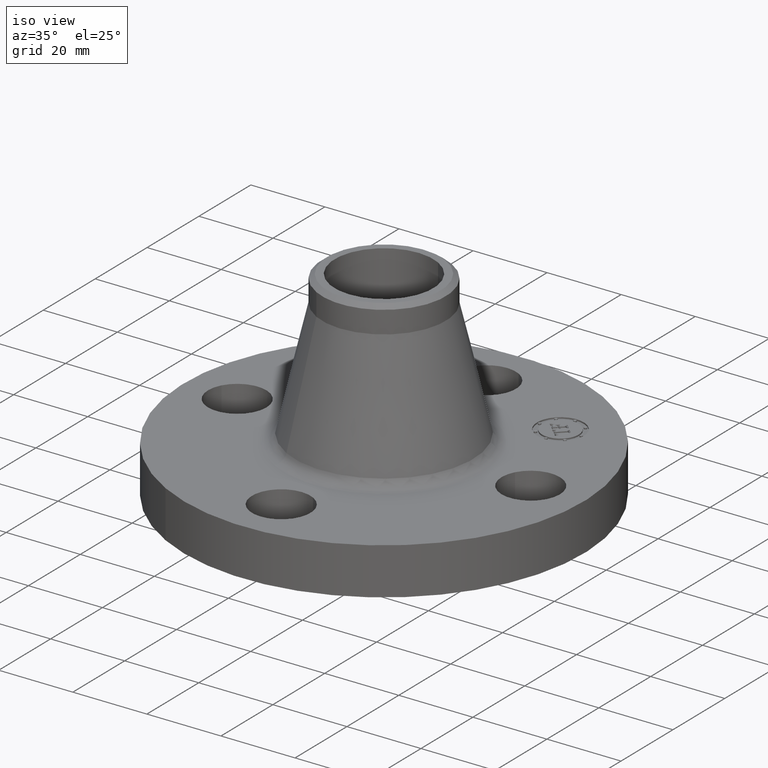
[diagram: clean part render]
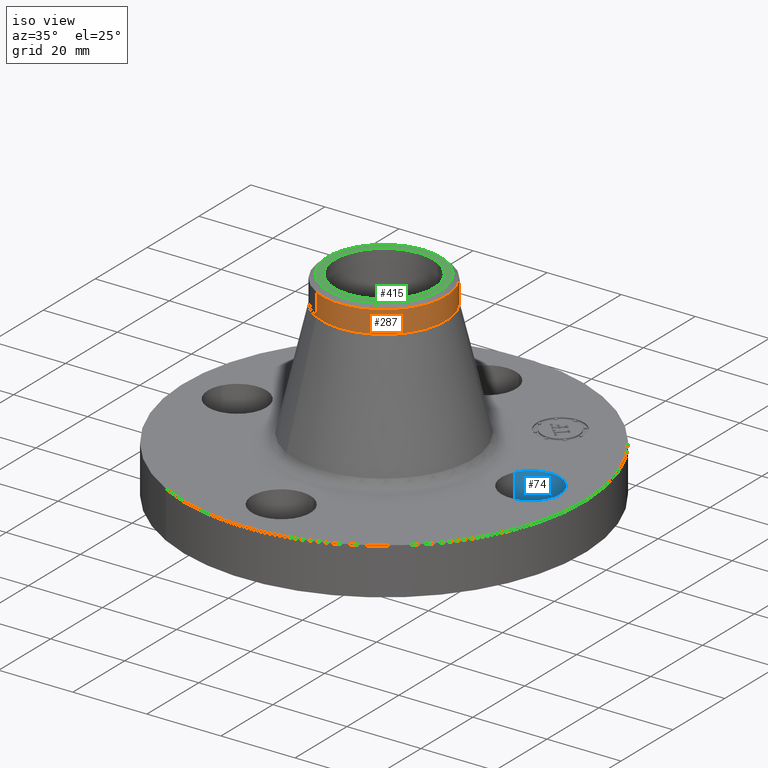
[diagram: same view with three faces highlighted in distinct colors, each labeled with its STEP entity id]
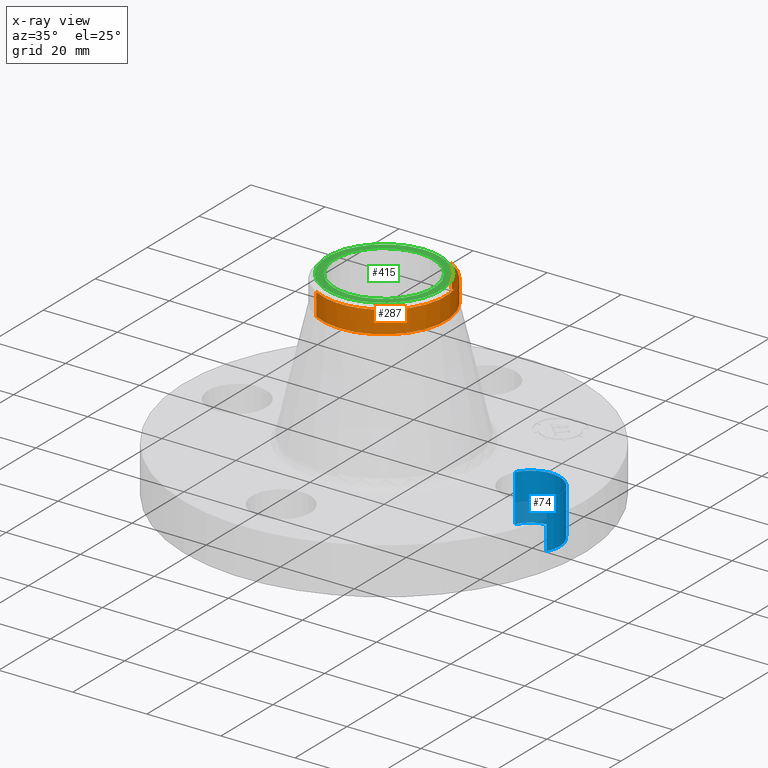
[diagram: x-ray of the same camera — body ghosted, the three highlighted faces saturated]
A machine part, iso view with three faces highlighted in distinct colors.
The next image is the same camera in x-ray (body ghosted, the three faces saturated) — at least one of them is partly hidden behind the body in this view.
Their STEP definitions:

[orange] entity #287 — the highlighted cylindrical surface (partial cylindrical patch) has radius 16.7005 mm, axis along (0, 0, -1).
#220=AXIS2_PLACEMENT_3D('Circle Axis2P3D',#218,#219,$) ;
#252=AXIS2_PLACEMENT_3D('Cylinder Axis2P3D',#249,#250,#251) ;
#270=AXIS2_PLACEMENT_3D('Circle Axis2P3D',#268,#269,$) ;
#277=AXIS2_PLACEMENT_3D('Circle Axis2P3D',#275,#276,$) ;
#215=CARTESIAN_POINT('Vertex',(0.315222291634,0.577010534445,1.84214448604)) ;
#218=CARTESIAN_POINT('Axis2P3D Location',(0.,0.,1.84214448604)) ;
#222=CARTESIAN_POINT('Vertex',(-0.315222291634,-0.577010534445,1.84214448604)) ;
#249=CARTESIAN_POINT('Axis2P3D Location',(0.,0.,1.06)) ;
#254=CARTESIAN_POINT('Line Origine',(-0.315222291634,-0.577010534445,1.96025472226)) ;
#258=CARTESIAN_POINT('Vertex',(-0.315222291634,-0.577010534445,2.07836495848)) ;
#261=CARTESIAN_POINT('Line Origine',(0.315222291634,0.577010534445,1.96025472226)) ;
#265=CARTESIAN_POINT('Vertex',(0.315222291634,0.577010534445,2.07836495848)) ;
#268=CARTESIAN_POINT('Axis2P3D Location',(0.,0.,2.07836495848)) ;
#272=CARTESIAN_POINT('Vertex',(0.315222291634,-0.577010534445,2.07836495848)) ;
#275=CARTESIAN_POINT('Axis2P3D Location',(0.,0.,2.07836495848)) ;
#219=DIRECTION('Axis2P3D Direction',(0.,0.,-0.0393700787402)) ;
#250=DIRECTION('Axis2P3D Direction',(0.,0.,-0.0393700787402)) ;
#251=DIRECTION('Axis2P3D XDirection',(-0.0188750212049,-0.0345504945626,0.)) ;
#255=DIRECTION('Vector Direction',(0.,0.,-0.0393700787402)) ;
#262=DIRECTION('Vector Direction',(0.,0.,-0.0393700787402)) ;
#269=DIRECTION('Axis2P3D Direction',(0.,0.,-0.0393700787402)) ;
#276=DIRECTION('Axis2P3D Direction',(0.,0.,-0.0393700787402)) ;
#256=VECTOR('Line Direction',#255,0.0393700787402) ;
#263=VECTOR('Line Direction',#262,0.0393700787402) ;
#281=ORIENTED_EDGE('',*,*,#260,.F.) ;
#282=ORIENTED_EDGE('',*,*,#224,.F.) ;
#283=ORIENTED_EDGE('',*,*,#267,.T.) ;
#284=ORIENTED_EDGE('',*,*,#274,.F.) ;
#285=ORIENTED_EDGE('',*,*,#279,.T.) ;
#287=ADVANCED_FACE('PartBody',(#286),#253,.T.) ;
#221=CIRCLE('generated circle',#220,0.657500000003) ;
#271=CIRCLE('generated circle',#270,0.657500000003) ;
#278=CIRCLE('generated circle',#277,0.657500000003) ;
#253=CYLINDRICAL_SURFACE('generated cylinder',#252,0.657500000003) ;
#224=EDGE_CURVE('',#216,#223,#221,.T.) ;
#260=EDGE_CURVE('',#223,#259,#257,.F.) ;
#267=EDGE_CURVE('',#216,#266,#264,.F.) ;
#274=EDGE_CURVE('',#273,#266,#271,.F.) ;
#279=EDGE_CURVE('',#273,#259,#278,.T.) ;
#280=EDGE_LOOP('',(#281,#282,#283,#284,#285)) ;
#286=FACE_OUTER_BOUND('',#280,.T.) ;
#257=LINE('Line',#254,#256) ;
#264=LINE('Line',#261,#263) ;
#216=VERTEX_POINT('',#215) ;
#223=VERTEX_POINT('',#222) ;
#259=VERTEX_POINT('',#258) ;
#266=VERTEX_POINT('',#265) ;
#273=VERTEX_POINT('',#272) ;

[blue] entity #74 — the highlighted cylindrical surface (edge-blend (fillet) strip) has radius 7.874 mm, axis along (0, -0, -1).
#38=AXIS2_PLACEMENT_3D('Cylinder Axis2P3D',#35,#36,#37) ;
#51=AXIS2_PLACEMENT_3D('Circle Axis2P3D',#49,#50,$) ;
#65=AXIS2_PLACEMENT_3D('Circle Axis2P3D',#63,#64,$) ;
#35=CARTESIAN_POINT('Axis2P3D Location',(1.56000000001,0.,0.496062992128)) ;
#40=CARTESIAN_POINT('Line Origine',(1.28794940582,0.148621916968,0.250000000001)) ;
#44=CARTESIAN_POINT('Vertex',(1.28794940582,0.148621916968,0.)) ;
#46=CARTESIAN_POINT('Vertex',(1.28794940582,0.148621916968,0.500000000002)) ;
#49=CARTESIAN_POINT('Axis2P3D Location',(1.56000000001,0.,0.)) ;
#53=CARTESIAN_POINT('Vertex',(1.83205059419,-0.148621916968,0.)) ;
#56=CARTESIAN_POINT('Line Origine',(1.83205059419,-0.148621916968,0.250000000001)) ;
#60=CARTESIAN_POINT('Vertex',(1.83205059419,-0.148621916968,0.500000000002)) ;
#63=CARTESIAN_POINT('Axis2P3D Location',(1.56000000001,0.,0.500000000002)) ;
#36=DIRECTION('Axis2P3D Direction',(0.,-0.,-0.0393700787402)) ;
#37=DIRECTION('Axis2P3D XDirection',(0.0345504945626,-0.0188750212049,0.)) ;
#41=DIRECTION('Vector Direction',(0.,0.,-0.0393700787402)) ;
#50=DIRECTION('Axis2P3D Direction',(0.,-0.,-0.0393700787402)) ;
#57=DIRECTION('Vector Direction',(0.,0.,-0.0393700787402)) ;
#64=DIRECTION('Axis2P3D Direction',(0.,-0.,-0.0393700787402)) ;
#42=VECTOR('Line Direction',#41,0.0393700787402) ;
#58=VECTOR('Line Direction',#57,0.0393700787402) ;
#69=ORIENTED_EDGE('',*,*,#48,.F.) ;
#70=ORIENTED_EDGE('',*,*,#55,.T.) ;
#71=ORIENTED_EDGE('',*,*,#62,.T.) ;
#72=ORIENTED_EDGE('',*,*,#67,.F.) ;
#74=ADVANCED_FACE('PartBody',(#73),#39,.F.) ;
#52=CIRCLE('generated circle',#51,0.310000000001) ;
#66=CIRCLE('generated circle',#65,0.310000000001) ;
#39=CYLINDRICAL_SURFACE('generated cylinder',#38,0.310000000001) ;
#48=EDGE_CURVE('',#45,#47,#43,.F.) ;
#55=EDGE_CURVE('',#45,#54,#52,.T.) ;
#62=EDGE_CURVE('',#54,#61,#59,.F.) ;
#67=EDGE_CURVE('',#47,#61,#66,.T.) ;
#68=EDGE_LOOP('',(#69,#70,#71,#72)) ;
#73=FACE_OUTER_BOUND('',#68,.T.) ;
#43=LINE('Line',#40,#42) ;
#59=LINE('Line',#56,#58) ;
#45=VERTEX_POINT('',#44) ;
#47=VERTEX_POINT('',#46) ;
#54=VERTEX_POINT('',#53) ;
#61=VERTEX_POINT('',#60) ;

[green] entity #415 — the highlighted planar face has unit normal (0, 0, -1).
#322=AXIS2_PLACEMENT_3D('Circle Axis2P3D',#320,#321,$) ;
#347=AXIS2_PLACEMENT_3D('Circle Axis2P3D',#345,#346,$) ;
#382=AXIS2_PLACEMENT_3D('Circle Axis2P3D',#380,#381,$) ;
#400=AXIS2_PLACEMENT_3D('Plane Axis2P3D',#397,#398,#399) ;
#404=AXIS2_PLACEMENT_3D('Circle Axis2P3D',#402,#403,$) ;
#317=CARTESIAN_POINT('Vertex',(0.289208737409,-0.529393042839,2.12000000001)) ;
#320=CARTESIAN_POINT('Axis2P3D Location',(0.,0.,2.12000000001)) ;
#324=CARTESIAN_POINT('Vertex',(-0.289208737409,0.529393042839,2.12000000001)) ;
#345=CARTESIAN_POINT('Axis2P3D Location',(0.,0.,2.12000000001)) ;
#349=CARTESIAN_POINT('Vertex',(-0.251458694999,-0.460292053713,2.12000000001)) ;
#351=CARTESIAN_POINT('Vertex',(0.251458694999,0.460292053713,2.12000000001)) ;
#380=CARTESIAN_POINT('Axis2P3D Location',(0.,0.,2.12000000001)) ;
#397=CARTESIAN_POINT('Axis2P3D Location',(0.,0.657500000003,2.12000000001)) ;
#402=CARTESIAN_POINT('Axis2P3D Location',(0.,0.,2.12000000001)) ;
#321=DIRECTION('Axis2P3D Direction',(0.,0.,-0.0393700787402)) ;
#346=DIRECTION('Axis2P3D Direction',(0.,0.,-0.0393700787402)) ;
#381=DIRECTION('Axis2P3D Direction',(0.,0.,-0.0393700787402)) ;
#398=DIRECTION('Axis2P3D Direction',(0.,0.,-0.0393700787402)) ;
#399=DIRECTION('Axis2P3D XDirection',(0.0393700787402,0.,0.)) ;
#403=DIRECTION('Axis2P3D Direction',(0.,0.,-0.0393700787402)) ;
#408=ORIENTED_EDGE('',*,*,#406,.T.) ;
#409=ORIENTED_EDGE('',*,*,#326,.T.) ;
#412=ORIENTED_EDGE('',*,*,#353,.T.) ;
#413=ORIENTED_EDGE('',*,*,#384,.T.) ;
#414=FACE_BOUND('',#411,.T.) ;
#415=ADVANCED_FACE('PartBody',(#410,#414),#401,.F.) ;
#323=CIRCLE('generated circle',#322,0.603240157482) ;
#348=CIRCLE('generated circle',#347,0.524500000002) ;
#383=CIRCLE('generated circle',#382,0.524500000002) ;
#405=CIRCLE('generated circle',#404,0.603240157482) ;
#326=EDGE_CURVE('',#325,#318,#323,.F.) ;
#353=EDGE_CURVE('',#350,#352,#348,.T.) ;
#384=EDGE_CURVE('',#352,#350,#383,.T.) ;
#406=EDGE_CURVE('',#318,#325,#405,.F.) ;
#407=EDGE_LOOP('',(#408,#409)) ;
#411=EDGE_LOOP('',(#412,#413)) ;
#410=FACE_OUTER_BOUND('',#407,.T.) ;
#401=PLANE('',#400) ;
#318=VERTEX_POINT('',#317) ;
#325=VERTEX_POINT('',#324) ;
#350=VERTEX_POINT('',#349) ;
#352=VERTEX_POINT('',#351) ;